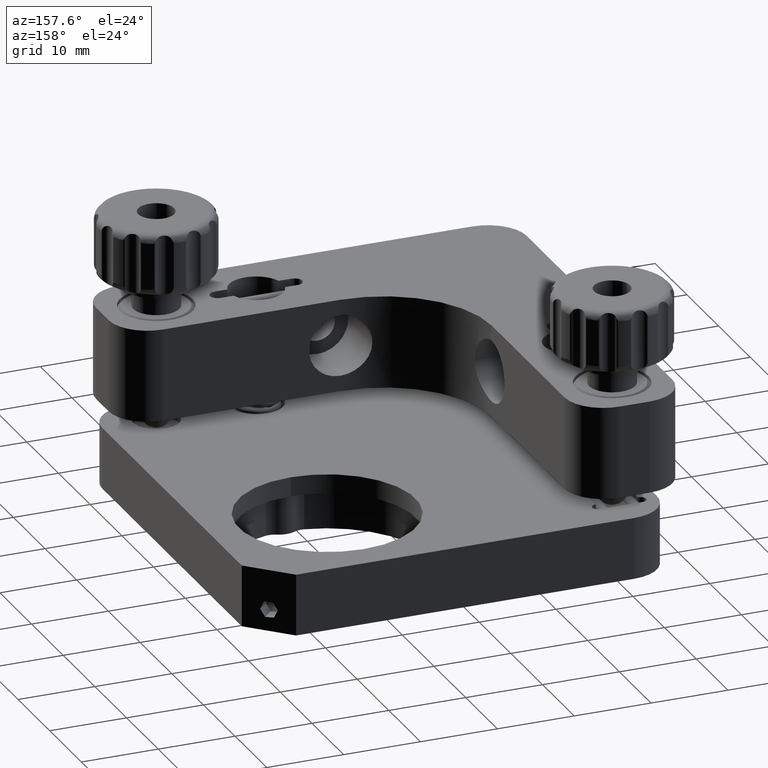
[diagram: clean part render]
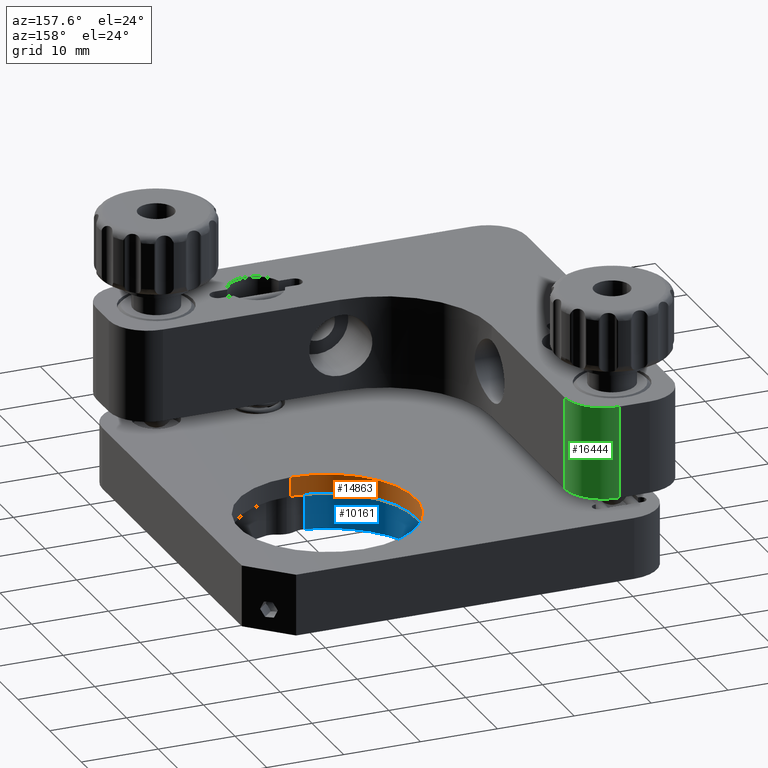
[diagram: same view with three faces highlighted in distinct colors, each labeled with its STEP entity id]
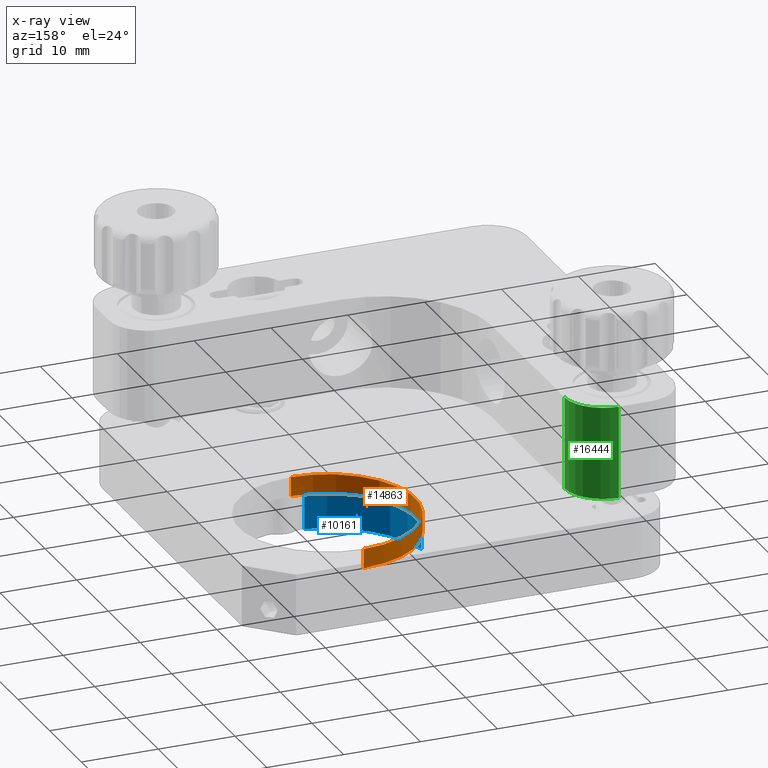
[diagram: x-ray of the same camera — body ghosted, the three highlighted faces saturated]
A machine part, auxiliary view with three faces highlighted in distinct colors.
The next image is the same camera in x-ray (body ghosted, the three faces saturated) — at least one of them is partly hidden behind the body in this view.
Their STEP definitions:

[orange] entity #14863 — the highlighted cylindrical surface (partial cylindrical patch) has radius 11.5 mm, axis along (0, 0, 1).
#58 = ORIENTED_EDGE ( 'NONE', *, *, #18396, .T. ) ;
#924 = ORIENTED_EDGE ( 'NONE', *, *, #11033, .T. ) ;
#1684 = DIRECTION ( 'NONE',  ( -0.0000000000000000000, -0.0000000000000000000, 1.000000000000000000 ) ) ;
#1911 = DIRECTION ( 'NONE',  ( 0.0000000000000000000, -1.000000000000000000, 0.0000000000000000000 ) ) ;
#2257 = CARTESIAN_POINT ( 'NONE',  ( 12.60000000000000000, 1.100000000000002100, -11.50000000000000000 ) ) ;
#2336 = DIRECTION ( 'NONE',  ( 0.0000000000000000000, 0.0000000000000000000, 1.000000000000000000 ) ) ;
#2410 = LINE ( 'NONE', #9988, #9606 ) ;
#3792 = DIRECTION ( 'NONE',  ( 0.0000000000000000000, 0.0000000000000000000, 1.000000000000000000 ) ) ;
#3830 = CARTESIAN_POINT ( 'NONE',  ( 12.60000000000000000, 12.60000000000000000, -17.00000000000000000 ) ) ;
#4274 = FACE_OUTER_BOUND ( 'NONE', #14458, .T. ) ;
#4976 = CARTESIAN_POINT ( 'NONE',  ( 12.60000000000000000, 12.60000000000000000, -9.000000000000000000 ) ) ;
#5910 = LINE ( 'NONE', #7052, #19595 ) ;
#6545 = CARTESIAN_POINT ( 'NONE',  ( 12.60000000000000000, 12.60000000000000000, -11.50000000000000000 ) ) ;
#6953 = DIRECTION ( 'NONE',  ( 0.0000000000000000000, -1.000000000000000000, 0.0000000000000000000 ) ) ;
#7052 = CARTESIAN_POINT ( 'NONE',  ( 12.60000000000000000, 1.100000000000002100, -17.00000000000000000 ) ) ;
#7924 = ORIENTED_EDGE ( 'NONE', *, *, #11665, .F. ) ;
#9606 = VECTOR ( 'NONE', #2336, 1000.000000000000000 ) ;
#9906 = VERTEX_POINT ( 'NONE', #12552 ) ;
#9988 = CARTESIAN_POINT ( 'NONE',  ( 12.60000000000000100, 24.09999999999999800, -17.00000000000000000 ) ) ;
#10082 = CARTESIAN_POINT ( 'NONE',  ( 12.60000000000000100, 24.09999999999999800, -9.000000000000000000 ) ) ;
#11033 = EDGE_CURVE ( 'NONE', #9906, #19718, #2410, .T. ) ;
#11665 = EDGE_CURVE ( 'NONE', #9906, #20276, #17317, .T. ) ;
#11886 = AXIS2_PLACEMENT_3D ( 'NONE', #6545, #1684, #14273 ) ;
#12552 = CARTESIAN_POINT ( 'NONE',  ( 12.60000000000000100, 24.09999999999999800, -11.50000000000000000 ) ) ;
#12624 = VERTEX_POINT ( 'NONE', #16005 ) ;
#13129 = ORIENTED_EDGE ( 'NONE', *, *, #19227, .F. ) ;
#14273 = DIRECTION ( 'NONE',  ( 0.0000000000000000000, 1.000000000000000000, 0.0000000000000000000 ) ) ;
#14458 = EDGE_LOOP ( 'NONE', ( #7924, #924, #58, #13129 ) ) ;
#14863 = ADVANCED_FACE ( 'NONE', ( #4274 ), #20209, .F. ) ;
#15195 = AXIS2_PLACEMENT_3D ( 'NONE', #4976, #16087, #1911 ) ;
#15876 = CIRCLE ( 'NONE', #15195, 11.49999999999999800 ) ;
#16005 = CARTESIAN_POINT ( 'NONE',  ( 12.60000000000000000, 1.100000000000002100, -9.000000000000000000 ) ) ;
#16087 = DIRECTION ( 'NONE',  ( 0.0000000000000000000, 0.0000000000000000000, 1.000000000000000000 ) ) ;
#17317 = CIRCLE ( 'NONE', #11886, 11.49999999999999600 ) ;
#18161 = DIRECTION ( 'NONE',  ( 0.0000000000000000000, 0.0000000000000000000, 1.000000000000000000 ) ) ;
#18396 = EDGE_CURVE ( 'NONE', #19718, #12624, #15876, .T. ) ;
#19227 = EDGE_CURVE ( 'NONE', #20276, #12624, #5910, .T. ) ;
#19595 = VECTOR ( 'NONE', #3792, 1000.000000000000000 ) ;
#19718 = VERTEX_POINT ( 'NONE', #10082 ) ;
#19795 = AXIS2_PLACEMENT_3D ( 'NONE', #3830, #18161, #6953 ) ;
#20209 = CYLINDRICAL_SURFACE ( 'NONE', #19795, 11.49999999999999800 ) ;
#20276 = VERTEX_POINT ( 'NONE', #2257 ) ;

[blue] entity #10161 — the highlighted cylindrical surface (partial cylindrical patch) has radius 13.5 mm, axis along (0, 0, -1).
#251 = EDGE_LOOP ( 'NONE', ( #1531, #18439, #19752, #1742 ) ) ;
#931 = FACE_OUTER_BOUND ( 'NONE', #251, .T. ) ;
#1531 = ORIENTED_EDGE ( 'NONE', *, *, #8944, .F. ) ;
#1640 = VERTEX_POINT ( 'NONE', #12288 ) ;
#1742 = ORIENTED_EDGE ( 'NONE', *, *, #7615, .T. ) ;
#2482 = CARTESIAN_POINT ( 'NONE',  ( 12.60000000000000000, 12.60000000000000000, -11.50000000000000000 ) ) ;
#2943 = CARTESIAN_POINT ( 'NONE',  ( -0.6690124678310656000, 10.11337414785743300, -11.50000000000000000 ) ) ;
#3356 = LINE ( 'NONE', #2943, #16636 ) ;
#3475 = VERTEX_POINT ( 'NONE', #17677 ) ;
#4409 = CIRCLE ( 'NONE', #14586, 13.49999999999999800 ) ;
#4936 = DIRECTION ( 'NONE',  ( 0.0000000000000000000, 0.0000000000000000000, -1.000000000000000000 ) ) ;
#5104 = AXIS2_PLACEMENT_3D ( 'NONE', #2482, #17003, #16868 ) ;
#6595 = CIRCLE ( 'NONE', #5104, 13.49999999999999800 ) ;
#6761 = EDGE_CURVE ( 'NONE', #3475, #12897, #14631, .T. ) ;
#6939 = DIRECTION ( 'NONE',  ( 0.0000000000000000000, 0.0000000000000000000, -1.000000000000000000 ) ) ;
#7092 = EDGE_CURVE ( 'NONE', #12897, #16857, #4409, .T. ) ;
#7615 = EDGE_CURVE ( 'NONE', #16857, #1640, #3356, .T. ) ;
#7703 = CARTESIAN_POINT ( 'NONE',  ( -0.6690124678310656000, 10.11337414785743300, -17.00000000000000000 ) ) ;
#8944 = EDGE_CURVE ( 'NONE', #3475, #1640, #6595, .T. ) ;
#9997 = CARTESIAN_POINT ( 'NONE',  ( 10.11337414785718300, -0.6690124678310187500, -17.00000000000000000 ) ) ;
#10161 = ADVANCED_FACE ( 'NONE', ( #931 ), #18354, .F. ) ;
#12288 = CARTESIAN_POINT ( 'NONE',  ( -0.6690124678310656000, 10.11337414785743300, -11.50000000000000000 ) ) ;
#12510 = DIRECTION ( 'NONE',  ( -0.0000000000000000000, -0.0000000000000000000, 1.000000000000000000 ) ) ;
#12897 = VERTEX_POINT ( 'NONE', #9997 ) ;
#14285 = CARTESIAN_POINT ( 'NONE',  ( 12.60000000000000000, 12.60000000000000000, -17.00000000000000000 ) ) ;
#14459 = CARTESIAN_POINT ( 'NONE',  ( 12.60000000000000000, 12.60000000000000000, -11.50000000000000000 ) ) ;
#14586 = AXIS2_PLACEMENT_3D ( 'NONE', #14285, #17839, #19434 ) ;
#14631 = LINE ( 'NONE', #16482, #17125 ) ;
#16052 = DIRECTION ( 'NONE',  ( 0.0000000000000000000, 1.000000000000000000, 0.0000000000000000000 ) ) ;
#16482 = CARTESIAN_POINT ( 'NONE',  ( 10.11337414785718300, -0.6690124678310187500, -11.50000000000000000 ) ) ;
#16636 = VECTOR ( 'NONE', #12510, 1000.000000000000000 ) ;
#16705 = AXIS2_PLACEMENT_3D ( 'NONE', #14459, #4936, #16052 ) ;
#16857 = VERTEX_POINT ( 'NONE', #7703 ) ;
#16868 = DIRECTION ( 'NONE',  ( 0.0000000000000000000, 1.000000000000000000, 0.0000000000000000000 ) ) ;
#17003 = DIRECTION ( 'NONE',  ( 0.0000000000000000000, 0.0000000000000000000, -1.000000000000000000 ) ) ;
#17125 = VECTOR ( 'NONE', #6939, 1000.000000000000000 ) ;
#17677 = CARTESIAN_POINT ( 'NONE',  ( 10.11337414785718300, -0.6690124678310187500, -11.50000000000000000 ) ) ;
#17839 = DIRECTION ( 'NONE',  ( 0.0000000000000000000, 0.0000000000000000000, -1.000000000000000000 ) ) ;
#18354 = CYLINDRICAL_SURFACE ( 'NONE', #16705, 13.49999999999999800 ) ;
#18439 = ORIENTED_EDGE ( 'NONE', *, *, #6761, .T. ) ;
#19434 = DIRECTION ( 'NONE',  ( 0.0000000000000000000, 1.000000000000000000, 0.0000000000000000000 ) ) ;
#19752 = ORIENTED_EDGE ( 'NONE', *, *, #7092, .T. ) ;

[green] entity #16444 — the highlighted cylindrical surface (partial cylindrical patch) has radius 5 mm, axis along (0, 0, -1).
#700 = CARTESIAN_POINT ( 'NONE',  ( -18.99999999999999600, 23.00000000000000000, -6.000000000000057700 ) ) ;
#887 = DIRECTION ( 'NONE',  ( 0.0000000000000000000, 2.220446049250313500E-015, -1.000000000000000000 ) ) ;
#1096 = CARTESIAN_POINT ( 'NONE',  ( -19.00000000000003200, 28.00000000000000000, -6.000000000000066600 ) ) ;
#1993 = CYLINDRICAL_SURFACE ( 'NONE', #4762, 5.000000000000000900 ) ;
#3128 = VECTOR ( 'NONE', #10735, 1000.000000000000000 ) ;
#3400 = CARTESIAN_POINT ( 'NONE',  ( -18.99999999999999600, 23.00000000000000000, 5.999999999999943200 ) ) ;
#3508 = ORIENTED_EDGE ( 'NONE', *, *, #19730, .F. ) ;
#4762 = AXIS2_PLACEMENT_3D ( 'NONE', #19525, #5298, #13126 ) ;
#5298 = DIRECTION ( 'NONE',  ( 0.0000000000000000000, 2.220446049250313500E-015, -1.000000000000000000 ) ) ;
#5311 = EDGE_CURVE ( 'NONE', #6273, #10636, #11560, .T. ) ;
#5510 = DIRECTION ( 'NONE',  ( 1.000000000000000000, 0.0000000000000000000, 0.0000000000000000000 ) ) ;
#6273 = VERTEX_POINT ( 'NONE', #17914 ) ;
#6727 = DIRECTION ( 'NONE',  ( 1.000000000000000000, 0.0000000000000000000, 0.0000000000000000000 ) ) ;
#7128 = CIRCLE ( 'NONE', #16713, 5.000000000000000900 ) ;
#8666 = CARTESIAN_POINT ( 'NONE',  ( -13.99999999999999600, 22.99999999999996400, -6.000000000000057700 ) ) ;
#8775 = ORIENTED_EDGE ( 'NONE', *, *, #20615, .T. ) ;
#10437 = EDGE_CURVE ( 'NONE', #12582, #12523, #20614, .T. ) ;
#10636 = VERTEX_POINT ( 'NONE', #1096 ) ;
#10735 = DIRECTION ( 'NONE',  ( 0.0000000000000000000, 2.220446049250313500E-015, -1.000000000000000000 ) ) ;
#11560 = LINE ( 'NONE', #12392, #3128 ) ;
#12013 = DIRECTION ( 'NONE',  ( 0.0000000000000000000, 2.220446049250313500E-015, -1.000000000000000000 ) ) ;
#12392 = CARTESIAN_POINT ( 'NONE',  ( -19.00000000000003200, 28.00000000000000000, 5.999999999999933400 ) ) ;
#12523 = VERTEX_POINT ( 'NONE', #8666 ) ;
#12576 = AXIS2_PLACEMENT_3D ( 'NONE', #3400, #14529, #6727 ) ;
#12582 = VERTEX_POINT ( 'NONE', #20003 ) ;
#13126 = DIRECTION ( 'NONE',  ( -1.000000000000000000, 0.0000000000000000000, 0.0000000000000000000 ) ) ;
#14529 = DIRECTION ( 'NONE',  ( 0.0000000000000000000, 2.220446049250313500E-015, -1.000000000000000000 ) ) ;
#15099 = VECTOR ( 'NONE', #887, 1000.000000000000000 ) ;
#15509 = ORIENTED_EDGE ( 'NONE', *, *, #5311, .F. ) ;
#16322 = EDGE_LOOP ( 'NONE', ( #3508, #15509, #8775, #18571 ) ) ;
#16444 = ADVANCED_FACE ( 'NONE', ( #17686 ), #1993, .T. ) ;
#16713 = AXIS2_PLACEMENT_3D ( 'NONE', #700, #12013, #5510 ) ;
#16761 = CARTESIAN_POINT ( 'NONE',  ( -13.99999999999999600, 22.99999999999996400, 5.999999999999943200 ) ) ;
#17326 = CIRCLE ( 'NONE', #12576, 5.000000000000000900 ) ;
#17686 = FACE_OUTER_BOUND ( 'NONE', #16322, .T. ) ;
#17914 = CARTESIAN_POINT ( 'NONE',  ( -19.00000000000003200, 28.00000000000000000, 5.999999999999933400 ) ) ;
#18571 = ORIENTED_EDGE ( 'NONE', *, *, #10437, .T. ) ;
#19525 = CARTESIAN_POINT ( 'NONE',  ( -18.99999999999999600, 23.00000000000000000, 5.999999999999943200 ) ) ;
#19730 = EDGE_CURVE ( 'NONE', #10636, #12523, #7128, .T. ) ;
#20003 = CARTESIAN_POINT ( 'NONE',  ( -13.99999999999999600, 22.99999999999996400, 5.999999999999943200 ) ) ;
#20614 = LINE ( 'NONE', #16761, #15099 ) ;
#20615 = EDGE_CURVE ( 'NONE', #6273, #12582, #17326, .T. ) ;